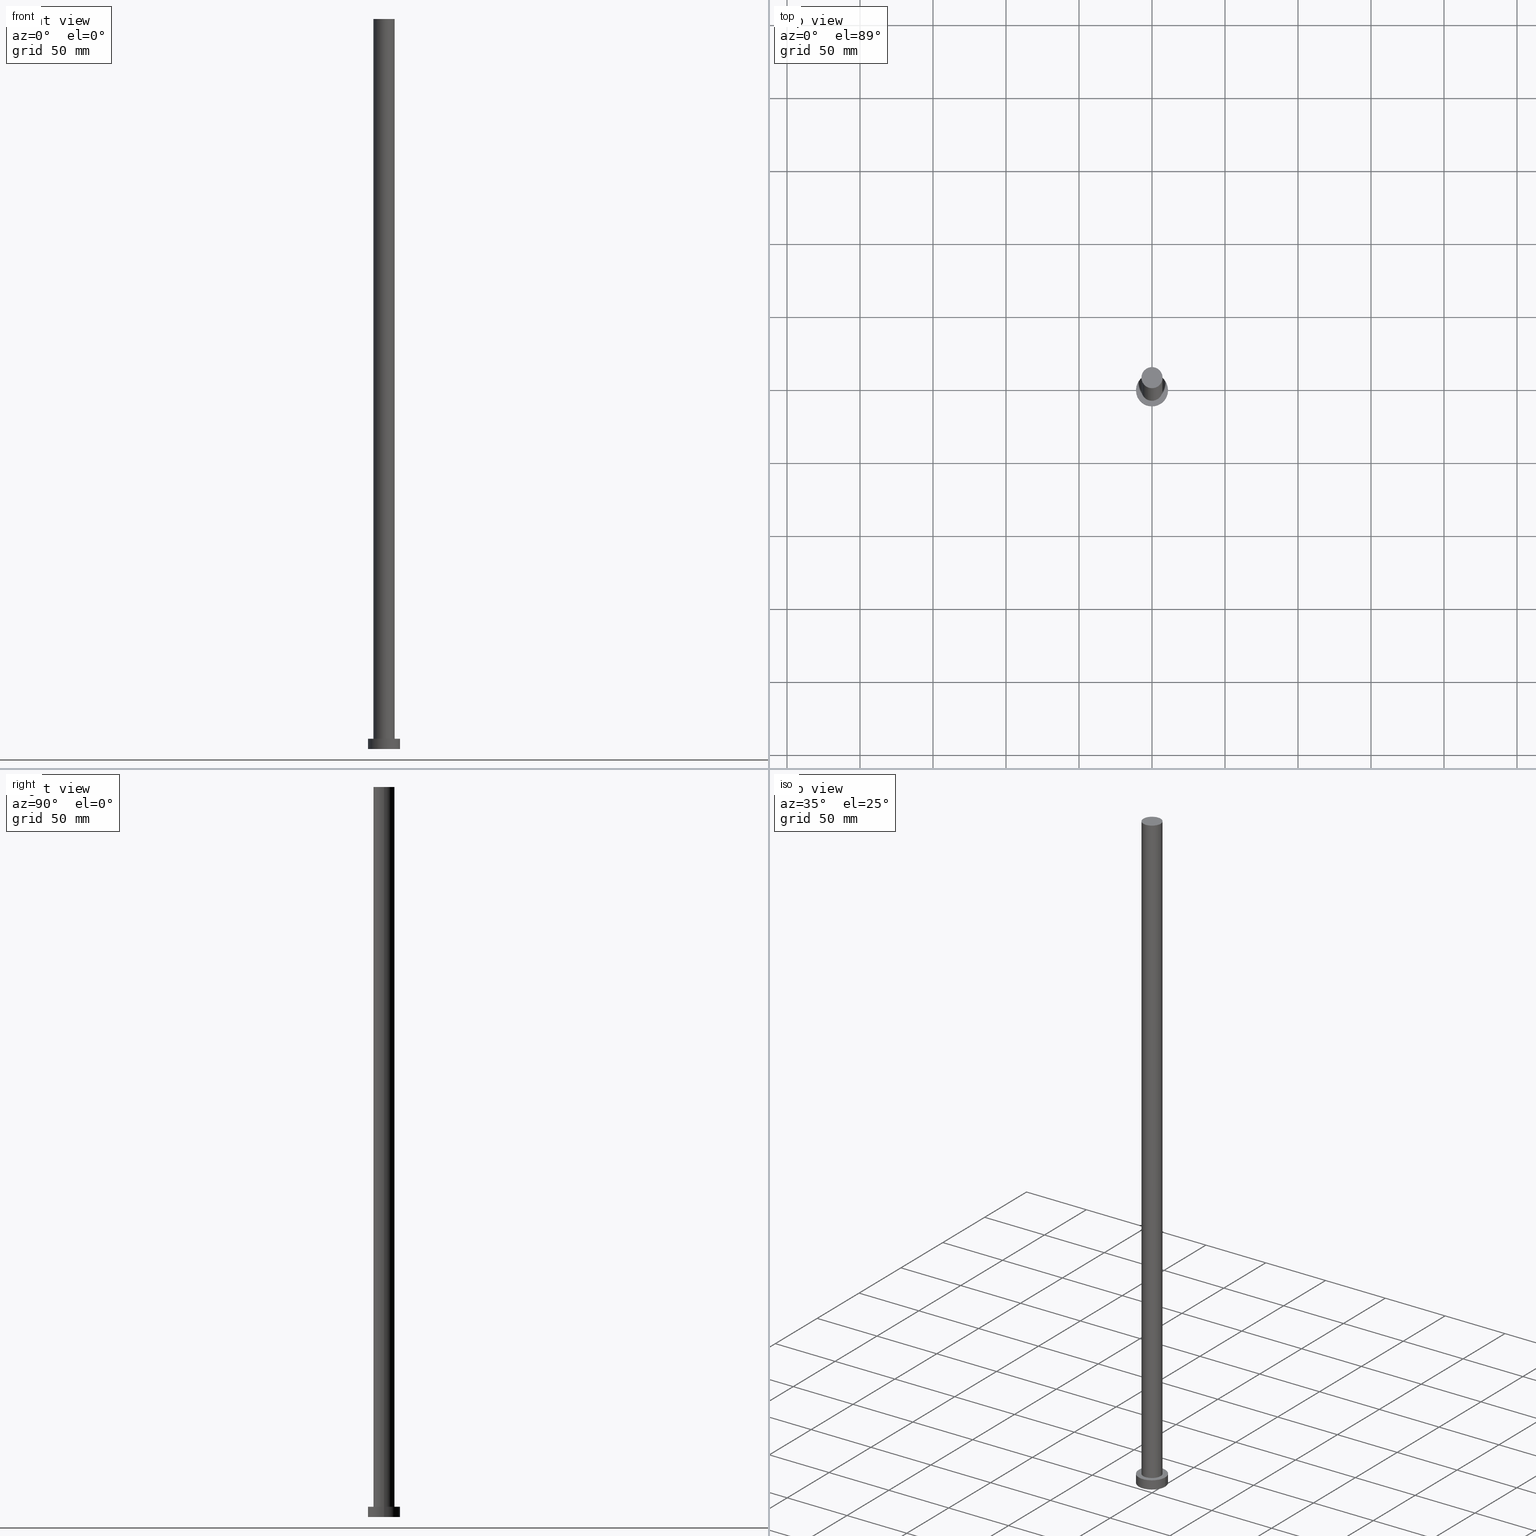
[diagram: canonical four-view strip — front | top / right | iso, engineering-drawing reading convention]
A machine part, canonical four-view strip (front | top / right | iso — engineering-drawing reading convention). The complete STEP part file that produces these views, byte-faithful:
ISO-10303-21;
HEADER;
FILE_DESCRIPTION (( 'STEP AP203' ),
    '1' );
FILE_NAME ('7fae.STEP',
    '2023-02-13T10:40:34',
    ( '' ),
    ( '' ),
    'SwSTEP 2.0',
    'SolidWorks 2019',
    '' );
FILE_SCHEMA (( 'CONFIG_CONTROL_DESIGN' ));
ENDSEC;

DATA;
#1 = UNCERTAINTY_MEASURE_WITH_UNIT (LENGTH_MEASURE( 1.000000000000000082E-05 ), #87, 'distance_accuracy_value', 'NONE');
#2 = APPROVAL ( #221, 'NEUR�EN�' ) ;
#3 = AXIS2_PLACEMENT_3D ( 'NONE', #93, #163, #96 ) ;
#4 = ORIENTED_EDGE ( 'NONE', *, *, #99, .F. ) ;
#5 = PERSON_AND_ORGANIZATION ( #61, #15 ) ;
#6 = CIRCLE ( 'NONE', #59, 11.00000000000000000 ) ;
#7 = ORIENTED_EDGE ( 'NONE', *, *, #104, .T. ) ;
#8 = DIRECTION ( 'NONE',  ( 1.000000000000000000, 0.000000000000000000, -0.000000000000000000 ) ) ;
#9 = CC_DESIGN_PERSON_AND_ORGANIZATION_ASSIGNMENT ( #38, #117, ( #171 ) ) ;
#10 = VERTEX_POINT ( 'NONE', #136 ) ;
#11 = DIRECTION ( 'NONE',  ( 0.000000000000000000, 0.000000000000000000, 1.000000000000000000 ) ) ;
#12 = CIRCLE ( 'NONE', #245, 7.250000000000000000 ) ;
#13 = LINE ( 'NONE', #53, #243 ) ;
#14 = CARTESIAN_POINT ( 'NONE',  ( 7.250000000000000000, 8.878689293818310074E-16, 500.0000000000000000 ) ) ;
#15 = ORGANIZATION ( 'NEUR�EN�', 'NEUR�EN�', '' ) ;
#16 = PERSON_AND_ORGANIZATION_ROLE ( 'classification_officer' ) ;
#17 = CARTESIAN_POINT ( 'NONE',  ( 0.000000000000000000, 0.000000000000000000, 500.0000000000000000 ) ) ;
#18 = AXIS2_PLACEMENT_3D ( 'NONE', #17, #51, #237 ) ;
#19 = PERSON_AND_ORGANIZATION ( #61, #15 ) ;
#20 = PLANE ( 'NONE',  #3 ) ;
#21 = APPLICATION_CONTEXT ( 'configuration controlled 3d designs of mechanical parts and assemblies' ) ;
#22 = DATE_TIME_ROLE ( 'classification_date' ) ;
#23 = EDGE_CURVE ( 'NONE', #227, #29, #250, .T. ) ;
#24 = CC_DESIGN_PERSON_AND_ORGANIZATION_ASSIGNMENT ( #70, #16, ( #118 ) ) ;
#25 = VERTEX_POINT ( 'NONE', #14 ) ;
#26 = ORIENTED_EDGE ( 'NONE', *, *, #195, .T. ) ;
#27 = ADVANCED_FACE ( 'NONE', ( #175 ), #112, .T. ) ;
#28 = ORIENTED_EDGE ( 'NONE', *, *, #254, .T. ) ;
#29 = VERTEX_POINT ( 'NONE', #52 ) ;
#30 = APPLICATION_PROTOCOL_DEFINITION ( 'international standard', 'config_control_design', 1994, #21 ) ;
#31 = EDGE_CURVE ( 'NONE', #82, #54, #12, .T. ) ;
#32 = AXIS2_PLACEMENT_3D ( 'NONE', #125, #34, #64 ) ;
#33 = EDGE_LOOP ( 'NONE', ( #149, #49, #28, #26 ) ) ;
#34 = DIRECTION ( 'NONE',  ( 0.000000000000000000, 0.000000000000000000, 1.000000000000000000 ) ) ;
#35 = CARTESIAN_POINT ( 'NONE',  ( 7.250000000000000000, 8.878689293818310074E-16, 500.0000000000000000 ) ) ;
#36 = CARTESIAN_POINT ( 'NONE',  ( 7.250000000000000000, 8.878689293818310074E-16, 7.000000000000000000 ) ) ;
#37 = DIRECTION ( 'NONE',  ( 0.000000000000000000, 0.000000000000000000, 1.000000000000000000 ) ) ;
#38 = PERSON_AND_ORGANIZATION ( #61, #15 ) ;
#39 = CARTESIAN_POINT ( 'NONE',  ( 0.000000000000000000, 0.000000000000000000, 7.000000000000000000 ) ) ;
#40 = CLOSED_SHELL ( 'NONE', ( #27, #137, #159, #202, #209, #65, #141 ) ) ;
#41 = APPROVAL_DATE_TIME ( #219, #2 ) ;
#42 = CC_DESIGN_APPROVAL ( #2, ( #171 ) ) ;
#43 = DATE_AND_TIME ( #199, #183 ) ;
#44 = ORIENTED_EDGE ( 'NONE', *, *, #186, .T. ) ;
#45 = DIRECTION ( 'NONE',  ( -1.000000000000000000, 0.000000000000000000, 0.000000000000000000 ) ) ;
#46 = ORIENTED_EDGE ( 'NONE', *, *, #78, .F. ) ;
#47 = EDGE_LOOP ( 'NONE', ( #188, #124 ) ) ;
#48 = DIRECTION ( 'NONE',  ( 0.000000000000000000, 0.000000000000000000, 1.000000000000000000 ) ) ;
#49 = ORIENTED_EDGE ( 'NONE', *, *, #244, .F. ) ;
#50 = DIRECTION ( 'NONE',  ( 0.000000000000000000, 0.000000000000000000, 1.000000000000000000 ) ) ;
#51 = DIRECTION ( 'NONE',  ( -0.000000000000000000, -0.000000000000000000, -1.000000000000000000 ) ) ;
#52 = CARTESIAN_POINT ( 'NONE',  ( -11.00000000000000000, 0.000000000000000000, 0.000000000000000000 ) ) ;
#53 = CARTESIAN_POINT ( 'NONE',  ( -7.250000000000000000, 0.000000000000000000, 500.0000000000000000 ) ) ;
#54 = VERTEX_POINT ( 'NONE', #236 ) ;
#55 = CALENDAR_DATE ( 2023, 13, 2 ) ;
#56 = CARTESIAN_POINT ( 'NONE',  ( 11.00000000000000000, 1.347111479062088405E-15, 7.000000000000000000 ) ) ;
#57 = CC_DESIGN_PERSON_AND_ORGANIZATION_ASSIGNMENT ( #95, #114, ( #171 ) ) ;
#58 = CALENDAR_DATE ( 2023, 13, 2 ) ;
#59 = AXIS2_PLACEMENT_3D ( 'NONE', #194, #231, #86 ) ;
#60 = AXIS2_PLACEMENT_3D ( 'NONE', #92, #134, #68 ) ;
#61 = PERSON ( 'NEUR�EN�', 'NEUR�EN�', 'NEUR�EN�', ('NEUR�EN�'), ('NEUR�EN�'), ('NEUR�EN�') ) ;
#62 = EDGE_CURVE ( 'NONE', #25, #82, #198, .T. ) ;
#63 = VECTOR ( 'NONE', #180, 1000.000000000000000 ) ;
#64 = DIRECTION ( 'NONE',  ( 1.000000000000000000, 0.000000000000000000, 0.000000000000000000 ) ) ;
#65 = ADVANCED_FACE ( 'NONE', ( #178 ), #157, .T. ) ;
#66 = DIRECTION ( 'NONE',  ( 1.000000000000000000, 0.000000000000000000, 0.000000000000000000 ) ) ;
#67 = AXIS2_PLACEMENT_3D ( 'NONE', #150, #216, #8 ) ;
#68 = DIRECTION ( 'NONE',  ( -1.000000000000000000, 0.000000000000000000, 0.000000000000000000 ) ) ;
#69 = CARTESIAN_POINT ( 'NONE',  ( 0.000000000000000000, 0.000000000000000000, 0.000000000000000000 ) ) ;
#70 = PERSON_AND_ORGANIZATION ( #61, #15 ) ;
#71 = CARTESIAN_POINT ( 'NONE',  ( 0.000000000000000000, 0.000000000000000000, 0.000000000000000000 ) ) ;
#72 = CALENDAR_DATE ( 2023, 13, 2 ) ;
#73 = DIRECTION ( 'NONE',  ( 1.000000000000000000, 0.000000000000000000, 0.000000000000000000 ) ) ;
#74 = LOCAL_TIME ( 11, 40, 34.00000000000000000, #76 ) ;
#75 = FACE_OUTER_BOUND ( 'NONE', #47, .T. ) ;
#76 = COORDINATED_UNIVERSAL_TIME_OFFSET ( 1, 0, .AHEAD. ) ;
#77 = CIRCLE ( 'NONE', #211, 11.00000000000000000 ) ;
#78 = EDGE_CURVE ( 'NONE', #29, #122, #77, .T. ) ;
#79 = CIRCLE ( 'NONE', #189, 11.00000000000000000 ) ;
#80 = CC_DESIGN_DATE_AND_TIME_ASSIGNMENT ( #91, #22, ( #118 ) ) ;
#81 = EDGE_LOOP ( 'NONE', ( #46, #101 ) ) ;
#82 = VERTEX_POINT ( 'NONE', #36 ) ;
#83 = ORIENTED_EDGE ( 'NONE', *, *, #78, .T. ) ;
#84 = DIRECTION ( 'NONE',  ( 1.000000000000000000, 0.000000000000000000, 0.000000000000000000 ) ) ;
#85 = ORIENTED_EDGE ( 'NONE', *, *, #226, .T. ) ;
#86 = DIRECTION ( 'NONE',  ( 1.000000000000000000, 0.000000000000000000, 0.000000000000000000 ) ) ;
#87 =( LENGTH_UNIT ( ) NAMED_UNIT ( * ) SI_UNIT ( .MILLI., .METRE. ) );
#88 = CC_DESIGN_PERSON_AND_ORGANIZATION_ASSIGNMENT ( #19, #182, ( #164 ) ) ;
#89 = DIRECTION ( 'NONE',  ( -0.000000000000000000, -0.000000000000000000, -1.000000000000000000 ) ) ;
#90 = CC_DESIGN_APPROVAL ( #113, ( #164 ) ) ;
#91 = DATE_AND_TIME ( #58, #185 ) ;
#92 = CARTESIAN_POINT ( 'NONE',  ( 0.000000000000000000, 0.000000000000000000, 500.0000000000000000 ) ) ;
#93 = CARTESIAN_POINT ( 'NONE',  ( 0.000000000000000000, 0.000000000000000000, 500.0000000000000000 ) ) ;
#94 = AXIS2_PLACEMENT_3D ( 'NONE', #69, #48, #153 ) ;
#95 = PERSON_AND_ORGANIZATION ( #61, #15 ) ;
#96 = DIRECTION ( 'NONE',  ( 1.000000000000000000, 0.000000000000000000, -0.000000000000000000 ) ) ;
#97 = PERSON_AND_ORGANIZATION ( #61, #15 ) ;
#98 = CC_DESIGN_DATE_AND_TIME_ASSIGNMENT ( #222, #139, ( #164 ) ) ;
#99 = EDGE_CURVE ( 'NONE', #10, #122, #116, .T. ) ;
#100 = CARTESIAN_POINT ( 'NONE',  ( 0.000000000000000000, 0.000000000000000000, 7.000000000000000000 ) ) ;
#101 = ORIENTED_EDGE ( 'NONE', *, *, #186, .F. ) ;
#102 = ORIENTED_EDGE ( 'NONE', *, *, #99, .T. ) ;
#103 = EDGE_LOOP ( 'NONE', ( #210, #123, #212, #115 ) ) ;
#104 = EDGE_CURVE ( 'NONE', #10, #227, #79, .T. ) ;
#105 =( NAMED_UNIT ( * ) PLANE_ANGLE_UNIT ( ) SI_UNIT ( $, .RADIAN. ) );
#106 = ORIENTED_EDGE ( 'NONE', *, *, #104, .F. ) ;
#107 = FACE_BOUND ( 'NONE', #146, .T. ) ;
#108 = LOCAL_TIME ( 11, 40, 34.00000000000000000, #140 ) ;
#109 = DIRECTION ( 'NONE',  ( 1.000000000000000000, 0.000000000000000000, 0.000000000000000000 ) ) ;
#110 = CARTESIAN_POINT ( 'NONE',  ( -11.00000000000000000, 0.000000000000000000, 7.000000000000000000 ) ) ;
#111 = VECTOR ( 'NONE', #162, 1000.000000000000000 ) ;
#112 = CYLINDRICAL_SURFACE ( 'NONE', #60, 7.250000000000000000 ) ;
#113 = APPROVAL ( #235, 'NEUR�EN�' ) ;
#114 = PERSON_AND_ORGANIZATION_ROLE ( 'creator' ) ;
#115 = ORIENTED_EDGE ( 'NONE', *, *, #254, .F. ) ;
#116 = LINE ( 'NONE', #56, #111 ) ;
#117 = PERSON_AND_ORGANIZATION_ROLE ( 'design_supplier' ) ;
#118 = SECURITY_CLASSIFICATION ( '', '', #161 ) ;
#119 = APPROVAL_STATUS ( 'not_yet_approved' ) ;
#120 = VECTOR ( 'NONE', #214, 1000.000000000000000 ) ;
#121 = APPROVAL_PERSON_ORGANIZATION ( #166, #2, #241 ) ;
#122 = VERTEX_POINT ( 'NONE', #138 ) ;
#123 = ORIENTED_EDGE ( 'NONE', *, *, #62, .T. ) ;
#124 = ORIENTED_EDGE ( 'NONE', *, *, #224, .T. ) ;
#125 = CARTESIAN_POINT ( 'NONE',  ( 0.000000000000000000, 0.000000000000000000, 500.0000000000000000 ) ) ;
#126 = ORIENTED_EDGE ( 'NONE', *, *, #226, .F. ) ;
#127 = PLANE ( 'NONE',  #249 ) ;
#128 = PRODUCT_DEFINITION_SHAPE ( 'NONE', 'NONE',  #164 ) ;
#129 = EDGE_LOOP ( 'NONE', ( #4, #126, #169, #83 ) ) ;
#130 = DIRECTION ( 'NONE',  ( 0.000000000000000000, 0.000000000000000000, 1.000000000000000000 ) ) ;
#131 = FACE_OUTER_BOUND ( 'NONE', #233, .T. ) ;
#132 = APPLICATION_PROTOCOL_DEFINITION ( 'international standard', 'config_control_design', 1994, #225 ) ;
#133 = FACE_OUTER_BOUND ( 'NONE', #173, .T. ) ;
#134 = DIRECTION ( 'NONE',  ( -0.000000000000000000, -0.000000000000000000, -1.000000000000000000 ) ) ;
#135 = APPROVAL_DATE_TIME ( #43, #177 ) ;
#136 = CARTESIAN_POINT ( 'NONE',  ( 11.00000000000000000, 1.347111479062088405E-15, 7.000000000000000000 ) ) ;
#137 = ADVANCED_FACE ( 'NONE', ( #131 ), #220, .T. ) ;
#138 = CARTESIAN_POINT ( 'NONE',  ( 11.00000000000000000, 1.347111479062088405E-15, 0.000000000000000000 ) ) ;
#139 = DATE_TIME_ROLE ( 'creation_date' ) ;
#140 = COORDINATED_UNIVERSAL_TIME_OFFSET ( 1, 0, .AHEAD. ) ;
#141 = ADVANCED_FACE ( 'NONE', ( #75 ), #20, .T. ) ;
#142 = CIRCLE ( 'NONE', #32, 7.250000000000000000 ) ;
#143 = COORDINATED_UNIVERSAL_TIME_OFFSET ( 1, 0, .AHEAD. ) ;
#144 = DESIGN_CONTEXT ( 'detailed design', #21, 'design' ) ;
#145 = PRODUCT_RELATED_PRODUCT_CATEGORY ( 'detail', '', ( #247 ) ) ;
#146 = EDGE_LOOP ( 'NONE', ( #208, #204 ) ) ;
#147 = AXIS2_PLACEMENT_3D ( 'NONE', #39, #253, #200 ) ;
#148 = CC_DESIGN_PERSON_AND_ORGANIZATION_ASSIGNMENT ( #5, #232, ( #247 ) ) ;
#149 = ORIENTED_EDGE ( 'NONE', *, *, #62, .F. ) ;
#150 = CARTESIAN_POINT ( 'NONE',  ( 0.000000000000000000, 0.000000000000000000, 7.000000000000000000 ) ) ;
#151 = CARTESIAN_POINT ( 'NONE',  ( 0.000000000000000000, 0.000000000000000000, 500.0000000000000000 ) ) ;
#152 = PERSON_AND_ORGANIZATION ( #61, #15 ) ;
#153 = DIRECTION ( 'NONE',  ( 1.000000000000000000, 0.000000000000000000, 0.000000000000000000 ) ) ;
#154 = APPROVAL_PERSON_ORGANIZATION ( #152, #113, #238 ) ;
#155 = MANIFOLD_SOLID_BREP ( 'P�idat vysunut�m3', #40 ) ;
#156 = DIRECTION ( 'NONE',  ( 1.000000000000000000, 0.000000000000000000, 0.000000000000000000 ) ) ;
#157 = CYLINDRICAL_SURFACE ( 'NONE', #18, 7.250000000000000000 ) ;
#158 = APPROVAL_ROLE ( '' ) ;
#159 = ADVANCED_FACE ( 'NONE', ( #205 ), #228, .T. ) ;
#160 = CARTESIAN_POINT ( 'NONE',  ( 0.000000000000000000, 0.000000000000000000, 7.000000000000000000 ) ) ;
#161 = SECURITY_CLASSIFICATION_LEVEL ( 'unclassified' ) ;
#162 = DIRECTION ( 'NONE',  ( -0.000000000000000000, -0.000000000000000000, -1.000000000000000000 ) ) ;
#163 = DIRECTION ( 'NONE',  ( 0.000000000000000000, 0.000000000000000000, 1.000000000000000000 ) ) ;
#164 = PRODUCT_DEFINITION ( 'NEZN�M�', '', #171, #144 ) ;
#165 = APPROVAL_DATE_TIME ( #179, #113 ) ;
#166 = PERSON_AND_ORGANIZATION ( #61, #15 ) ;
#167 = LOCAL_TIME ( 11, 40, 34.00000000000000000, #251 ) ;
#168 = CIRCLE ( 'NONE', #94, 11.00000000000000000 ) ;
#169 = ORIENTED_EDGE ( 'NONE', *, *, #23, .T. ) ;
#170 = CARTESIAN_POINT ( 'NONE',  ( 0.000000000000000000, 0.000000000000000000, 0.000000000000000000 ) ) ;
#171 = PRODUCT_DEFINITION_FORMATION_WITH_SPECIFIED_SOURCE ( 'LIBOVOLN�', '', #247, .NOT_KNOWN. ) ;
#172 = DIRECTION ( 'NONE',  ( 1.000000000000000000, 0.000000000000000000, -0.000000000000000000 ) ) ;
#173 = EDGE_LOOP ( 'NONE', ( #85, #7 ) ) ;
#174 = ADVANCED_BREP_SHAPE_REPRESENTATION ( '7fae', ( #155, #203 ), #206 ) ;
#175 = FACE_OUTER_BOUND ( 'NONE', #103, .T. ) ;
#176 = AXIS2_PLACEMENT_3D ( 'NONE', #213, #50, #109 ) ;
#177 = APPROVAL ( #119, 'NEUR�EN�' ) ;
#178 = FACE_OUTER_BOUND ( 'NONE', #33, .T. ) ;
#179 = DATE_AND_TIME ( #55, #74 ) ;
#180 = DIRECTION ( 'NONE',  ( -0.000000000000000000, -0.000000000000000000, -1.000000000000000000 ) ) ;
#181 = CARTESIAN_POINT ( 'NONE',  ( 0.000000000000000000, 0.000000000000000000, 7.000000000000000000 ) ) ;
#182 = PERSON_AND_ORGANIZATION_ROLE ( 'creator' ) ;
#183 = LOCAL_TIME ( 11, 40, 34.00000000000000000, #143 ) ;
#184 = VERTEX_POINT ( 'NONE', #207 ) ;
#185 = LOCAL_TIME ( 11, 40, 34.00000000000000000, #242 ) ;
#186 = EDGE_CURVE ( 'NONE', #122, #29, #168, .T. ) ;
#187 = DIRECTION ( 'NONE',  ( -0.000000000000000000, -0.000000000000000000, -1.000000000000000000 ) ) ;
#188 = ORIENTED_EDGE ( 'NONE', *, *, #244, .T. ) ;
#189 = AXIS2_PLACEMENT_3D ( 'NONE', #160, #197, #240 ) ;
#190 = DIRECTION ( 'NONE',  ( 0.000000000000000000, 0.000000000000000000, 1.000000000000000000 ) ) ;
#191 = CIRCLE ( 'NONE', #176, 7.250000000000000000 ) ;
#192 = MECHANICAL_CONTEXT ( 'NONE', #225, 'mechanical' ) ;
#193 = FACE_OUTER_BOUND ( 'NONE', #81, .T. ) ;
#194 = CARTESIAN_POINT ( 'NONE',  ( 0.000000000000000000, 0.000000000000000000, 7.000000000000000000 ) ) ;
#195 = EDGE_CURVE ( 'NONE', #54, #82, #191, .T. ) ;
#196 = PLANE ( 'NONE',  #67 ) ;
#197 = DIRECTION ( 'NONE',  ( 0.000000000000000000, 0.000000000000000000, 1.000000000000000000 ) ) ;
#198 = LINE ( 'NONE', #35, #63 ) ;
#199 = CALENDAR_DATE ( 2023, 13, 2 ) ;
#200 = DIRECTION ( 'NONE',  ( -1.000000000000000000, 0.000000000000000000, 0.000000000000000000 ) ) ;
#201 = CALENDAR_DATE ( 2023, 13, 2 ) ;
#202 = ADVANCED_FACE ( 'NONE', ( #107, #133 ), #196, .T. ) ;
#203 = AXIS2_PLACEMENT_3D ( 'NONE', #170, #190, #66 ) ;
#204 = ORIENTED_EDGE ( 'NONE', *, *, #31, .F. ) ;
#205 = FACE_OUTER_BOUND ( 'NONE', #129, .T. ) ;
#206 =( GEOMETRIC_REPRESENTATION_CONTEXT ( 3 ) GLOBAL_UNCERTAINTY_ASSIGNED_CONTEXT ( ( #1 ) ) GLOBAL_UNIT_ASSIGNED_CONTEXT ( ( #87, #105, #248 ) ) REPRESENTATION_CONTEXT ( 'NONE', 'WORKASPACE' ) );
#207 = CARTESIAN_POINT ( 'NONE',  ( -7.250000000000000000, 0.000000000000000000, 500.0000000000000000 ) ) ;
#208 = ORIENTED_EDGE ( 'NONE', *, *, #195, .F. ) ;
#209 = ADVANCED_FACE ( 'NONE', ( #193 ), #127, .F. ) ;
#210 = ORIENTED_EDGE ( 'NONE', *, *, #224, .F. ) ;
#211 = AXIS2_PLACEMENT_3D ( 'NONE', #71, #217, #73 ) ;
#212 = ORIENTED_EDGE ( 'NONE', *, *, #31, .T. ) ;
#213 = CARTESIAN_POINT ( 'NONE',  ( 0.000000000000000000, 0.000000000000000000, 7.000000000000000000 ) ) ;
#214 = DIRECTION ( 'NONE',  ( -0.000000000000000000, -0.000000000000000000, -1.000000000000000000 ) ) ;
#215 = CARTESIAN_POINT ( 'NONE',  ( 0.000000000000000000, 0.000000000000000000, 0.000000000000000000 ) ) ;
#216 = DIRECTION ( 'NONE',  ( 0.000000000000000000, 0.000000000000000000, 1.000000000000000000 ) ) ;
#217 = DIRECTION ( 'NONE',  ( 0.000000000000000000, 0.000000000000000000, 1.000000000000000000 ) ) ;
#218 = CARTESIAN_POINT ( 'NONE',  ( -11.00000000000000000, 0.000000000000000000, 7.000000000000000000 ) ) ;
#219 = DATE_AND_TIME ( #201, #108 ) ;
#220 = CYLINDRICAL_SURFACE ( 'NONE', #147, 11.00000000000000000 ) ;
#221 = APPROVAL_STATUS ( 'not_yet_approved' ) ;
#222 = DATE_AND_TIME ( #72, #167 ) ;
#223 = CC_DESIGN_SECURITY_CLASSIFICATION ( #118, ( #171 ) ) ;
#224 = EDGE_CURVE ( 'NONE', #25, #184, #142, .T. ) ;
#225 = APPLICATION_CONTEXT ( 'configuration controlled 3d designs of mechanical parts and assemblies' ) ;
#226 = EDGE_CURVE ( 'NONE', #227, #10, #6, .T. ) ;
#227 = VERTEX_POINT ( 'NONE', #110 ) ;
#228 = CYLINDRICAL_SURFACE ( 'NONE', #234, 11.00000000000000000 ) ;
#229 = ORIENTED_EDGE ( 'NONE', *, *, #23, .F. ) ;
#230 = CIRCLE ( 'NONE', #239, 7.250000000000000000 ) ;
#231 = DIRECTION ( 'NONE',  ( 0.000000000000000000, 0.000000000000000000, 1.000000000000000000 ) ) ;
#232 = PERSON_AND_ORGANIZATION_ROLE ( 'design_owner' ) ;
#233 = EDGE_LOOP ( 'NONE', ( #106, #102, #44, #229 ) ) ;
#234 = AXIS2_PLACEMENT_3D ( 'NONE', #100, #187, #45 ) ;
#235 = APPROVAL_STATUS ( 'not_yet_approved' ) ;
#236 = CARTESIAN_POINT ( 'NONE',  ( -7.250000000000000000, 0.000000000000000000, 7.000000000000000000 ) ) ;
#237 = DIRECTION ( 'NONE',  ( -1.000000000000000000, 0.000000000000000000, 0.000000000000000000 ) ) ;
#238 = APPROVAL_ROLE ( '' ) ;
#239 = AXIS2_PLACEMENT_3D ( 'NONE', #151, #130, #84 ) ;
#240 = DIRECTION ( 'NONE',  ( 1.000000000000000000, 0.000000000000000000, 0.000000000000000000 ) ) ;
#241 = APPROVAL_ROLE ( '' ) ;
#242 = COORDINATED_UNIVERSAL_TIME_OFFSET ( 1, 0, .AHEAD. ) ;
#243 = VECTOR ( 'NONE', #89, 1000.000000000000000 ) ;
#244 = EDGE_CURVE ( 'NONE', #184, #25, #230, .T. ) ;
#245 = AXIS2_PLACEMENT_3D ( 'NONE', #181, #37, #156 ) ;
#246 = CC_DESIGN_APPROVAL ( #177, ( #118 ) ) ;
#247 = PRODUCT ( '7fae', '7fae', '', ( #192 ) ) ;
#248 =( NAMED_UNIT ( * ) SI_UNIT ( $, .STERADIAN. ) SOLID_ANGLE_UNIT ( ) );
#249 = AXIS2_PLACEMENT_3D ( 'NONE', #215, #11, #172 ) ;
#250 = LINE ( 'NONE', #218, #120 ) ;
#251 = COORDINATED_UNIVERSAL_TIME_OFFSET ( 1, 0, .AHEAD. ) ;
#252 = SHAPE_DEFINITION_REPRESENTATION ( #128, #174 ) ;
#253 = DIRECTION ( 'NONE',  ( -0.000000000000000000, -0.000000000000000000, -1.000000000000000000 ) ) ;
#254 = EDGE_CURVE ( 'NONE', #184, #54, #13, .T. ) ;
#255 = APPROVAL_PERSON_ORGANIZATION ( #97, #177, #158 ) ;
ENDSEC;
END-ISO-10303-21;
